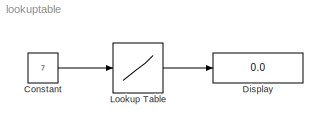
MODEL lookuptable
KIND model
BLOCK [Constant] Constant
  OutDataType = fixdt(1, 16)
  OutScaling = 2^0
  Value = 7
BLOCK [Display] Display
  Decimation = 1
  Lockdown = off
  Ports = [1]
BLOCK [Lookup] Lookup Table
  InputValues = [-5 -3 0 3 5]
  LookUpMeth = Interpolation-Use End Values
  OutDataType = fixdt(1, 16)
  OutScaling = 2^0
  SaturateOnIntegerOverflow = off
  Table = [-1 -.5 0 .5 1]
LINE Constant:1 -> Lookup Table:1
LINE Lookup Table:1 -> Display:1
